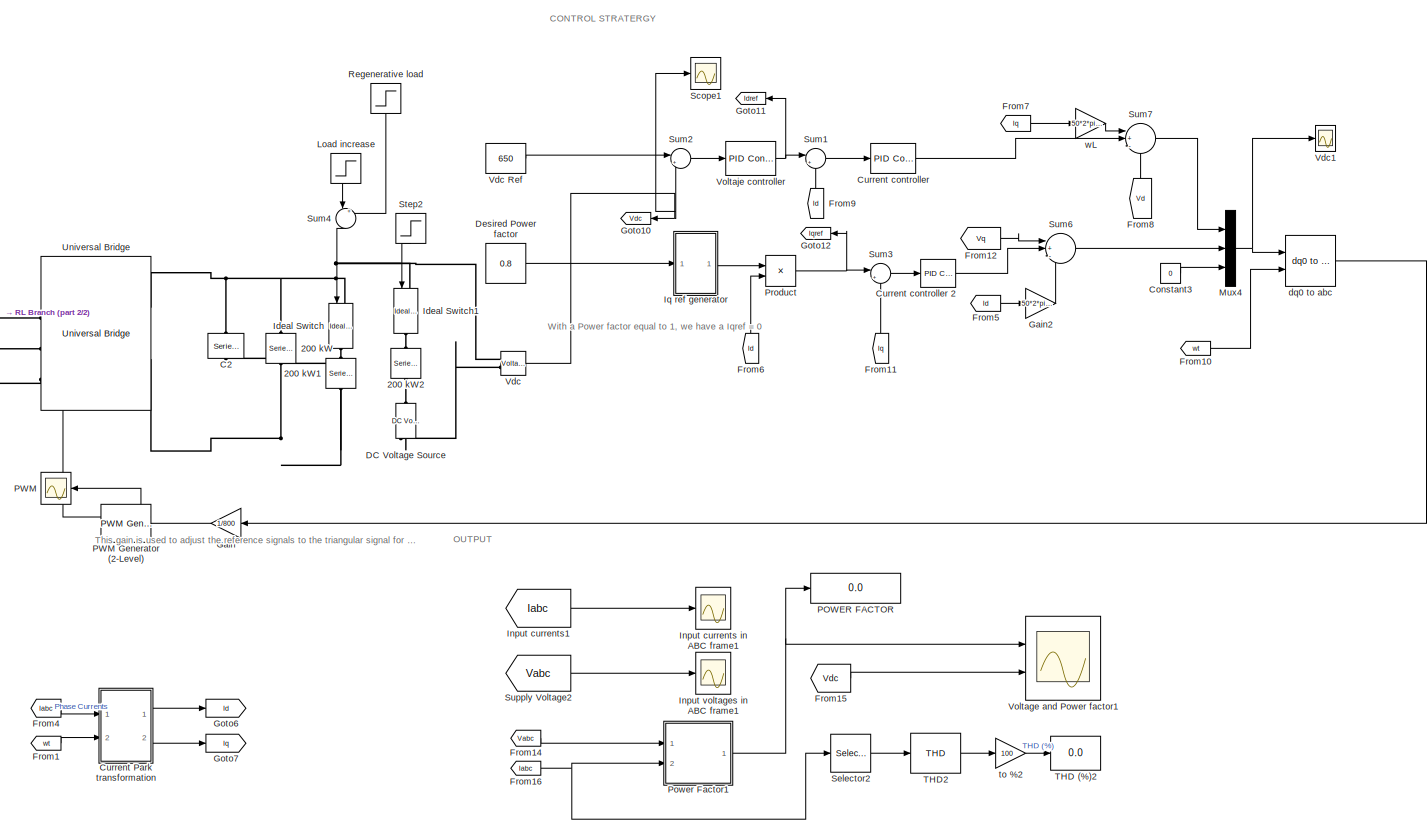
[diagram: root canvas - part 1/2, most of the canvas]
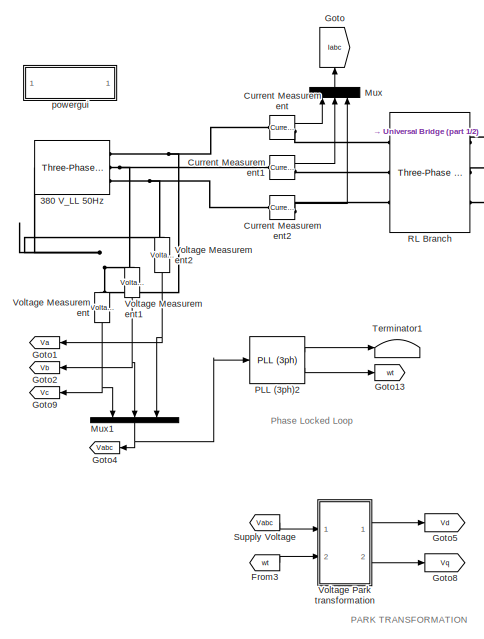
[diagram: root canvas - part 2/2, left side, full height]
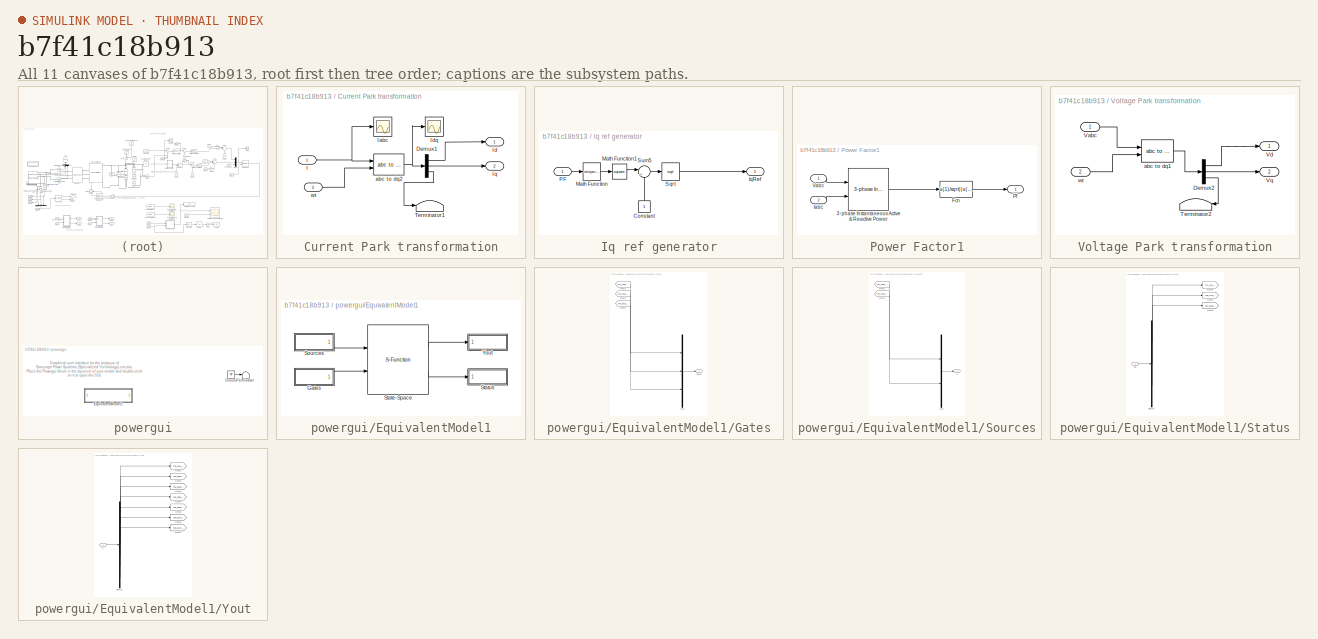
[diagram: thumbnail index - all 11 canvases of the model, root first then tree order]
MODEL slx_b7f41c18b913
KIND model
CONFIG AbsTol = auto
CONFIG EnableMultiTasking = off
CONFIG FixedStep = 3e-5
CONFIG InitFcn = load  power_3levelVSC.mat\nTs_Power=5e-6;\nTs_Control=100e-6;
CONFIG MaxStep = 1e-4
CONFIG MinStep = auto
CONFIG PreLoadFcn = load  power_3levelVSC.mat\nTs_Power=5e-6;\nTs_Control=100e-6;
CONFIG RelTol = 1e-3
CONFIG SampleTimeConstraint = Unconstrained
CONFIG Solver = VariableStepAuto
CONFIG SolverName = VariableStepAuto
CONFIG StartTime = 0.0
CONFIG StopTime = 6
BLOCK [Reference] 200 kW  REF=powerlib/Elements/Series RLC Branch
  AttributesFormatString = \n
  NameLocation = right
  Ports = [0, 0, 0, 0, 0, 1, 1]
  SourceBlock = powerlib/Elements/Series RLC Branch
  SourceProductBaseCode = PS
  SourceType = Series RLC Branch
BLOCK [Reference] 200 kW1  REF=powerlib/Elements/Series RLC Branch
  AttributesFormatString = \n
  NameLocation = right
  Ports = [0, 0, 0, 0, 0, 1, 1]
  SourceBlock = powerlib/Elements/Series RLC Branch
  SourceProductBaseCode = PS
  SourceType = Series RLC Branch
BLOCK [Reference] 200 kW2  REF=powerlib/Elements/Series RLC Branch
  AttributesFormatString = \n
  NameLocation = right
  Ports = [0, 0, 0, 0, 0, 1, 1]
  SourceBlock = powerlib/Elements/Series RLC Branch
  SourceProductBaseCode = PS
  SourceType = Series RLC Branch
BLOCK [Reference] 380 V_LL 50Hz  REF=powerlib/Electrical
Sources/Three-Phase Source
  Ports = [0, 0, 0, 0, 0, 1, 3]
  SourceBlock = powerlib/Electrical\nSources/Three-Phase Source
  SourceProductBaseCode = PS
  SourceType = Three-Phase Source
BLOCK [Reference] C2  REF=powerlib/Elements/Series RLC Branch
  AttributesFormatString = \n
  NameLocation = left
  Ports = [0, 0, 0, 0, 0, 1, 1]
  SourceBlock = powerlib/Elements/Series RLC Branch
  SourceProductBaseCode = PS
  SourceType = Series RLC Branch
BLOCK [Constant] Constant3
  SampleTime = 5e-6
  Value = 0
BLOCK [Reference] Current Measurement  REF=powerlib/Measurements/Current Measurement
  Ports = [0, 1, 0, 0, 0, 1, 1]
  SourceBlock = powerlib/Measurements/Current Measurement
  SourceProductBaseCode = PS
  SourceType = Current Measurement
  UserDataPersistent = on
BLOCK [Reference] Current Measurement1  REF=powerlib/Measurements/Current Measurement
  Ports = [0, 1, 0, 0, 0, 1, 1]
  SourceBlock = powerlib/Measurements/Current Measurement
  SourceProductBaseCode = PS
  SourceType = Current Measurement
  UserDataPersistent = on
BLOCK [Reference] Current Measurement2  REF=powerlib/Measurements/Current Measurement
  Ports = [0, 1, 0, 0, 0, 1, 1]
  SourceBlock = powerlib/Measurements/Current Measurement
  SourceProductBaseCode = PS
  SourceType = Current Measurement
  UserDataPersistent = on
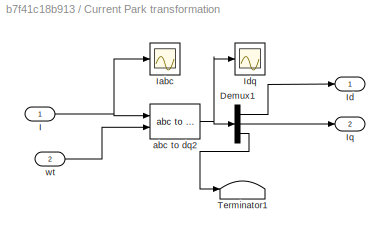
BLOCK [SubSystem] Current Park transformation
  Ports = [2, 2]
  RequestExecContextInheritance = off
BLOCK [Demux] Current Park transformation/Demux1
  Outputs = 3
  Ports = [1, 3]
BLOCK [Inport] Current Park transformation/I
BLOCK [Scope] Current Park transformation/Iabc
  Floating = off
  NumInputPorts = 1
  Ports = [1]
  ScopeSpecificationString = Simulink.scopes.TimeScopeBlockCfg('CurrentConfiguration', extmgr.ConfigurationSet(extmgr.Configuration('Core','General UI',true),extmgr.Configuration('Core','Source UI',true),extmgr.Configuration('Sources','WiredSimulink',true,'DataLoggingVariableName','ScopeData1','DataLogging',true,'DataLoggingMaxPoints','5000000','DataLoggingSaveFormat','StructureWithTime','SampleTime','1/4000'),extmgr.Configur...<+1663ch>
BLOCK [Outport] Current Park transformation/Id 
BLOCK [Scope] Current Park transformation/Idq
  Floating = off
  NumInputPorts = 1
  Ports = [1]
  ScopeSpecificationString = Simulink.scopes.TimeScopeBlockCfg('CurrentConfiguration', extmgr.ConfigurationSet(extmgr.Configuration('Core','General UI',true),extmgr.Configuration('Core','Source UI',true),extmgr.Configuration('Sources','WiredSimulink',true,'DataLoggingVariableName','ScopeData6'),extmgr.Configuration('Visuals','Time Domain',true,'SerializedDisplays',{struct('MinYLimReal','-149.71959','MaxYLimReal','162.68335','...<+1511ch>
BLOCK [Outport] Current Park transformation/Iq 
  Port = 2
BLOCK [Terminator] Current Park transformation/Terminator1
BLOCK [Reference] Current Park transformation/abc to dq2  REF=powerlib_meascontrol/Transformations/abc to dq0
  Ports = [2, 1]
  SourceBlock = powerlib_meascontrol/Transformations/abc to dq0
  SourceProductBaseCode = PS
  SourceType = abc to dq0 Transformation
BLOCK [Inport] Current Park transformation/wt
  Port = 2
BLOCK [Reference] Current controller  REF=simulink/Continuous/PID Controller
  Ports = [1, 1]
  SourceBlock = simulink/Continuous/PID Controller
  SourceProductBaseCode = SL
  SourceType = PID 1dof
BLOCK [Reference] Current controller 2  REF=simulink/Continuous/PID Controller
  Ports = [1, 1]
  SourceBlock = simulink/Continuous/PID Controller
  SourceProductBaseCode = SL
  SourceType = PID 1dof
BLOCK [Reference] DC Voltage Source  REF=powerlib/Electrical
Sources/DC Voltage Source
  NameLocation = right
  Ports = [0, 0, 0, 0, 0, 1, 1]
  SourceBlock = powerlib/Electrical\nSources/DC Voltage Source
  SourceProductBaseCode = PS
  SourceType = DC Voltage Source
BLOCK [Constant] Desired Power factor
  SampleTime = 5e-6
  Value = 0.8
BLOCK [From] From1
  GotoTag = wt
BLOCK [From] From10
  GotoTag = wt
BLOCK [From] From11
  GotoTag = Iq
  NameLocation = right
BLOCK [From] From12
  GotoTag = Vq
BLOCK [From] From14
  GotoTag = Vabc
BLOCK [From] From15
  GotoTag = Vdc
BLOCK [From] From16
  GotoTag = Iabc
BLOCK [From] From3
  GotoTag = wt
BLOCK [From] From4
  GotoTag = Iabc
BLOCK [From] From5
  GotoTag = Id
BLOCK [From] From6
  GotoTag = Id
  NameLocation = right
BLOCK [From] From7
  GotoTag = Iq
BLOCK [From] From8
  GotoTag = Vd
  NameLocation = right
BLOCK [From] From9
  GotoTag = Id
  NameLocation = right
BLOCK [Gain] Gain
  Gain = 1/800
  NameLocation = top
BLOCK [Gain] Gain2
  Gain = 50*2*pi*10e-3
  NameLocation = top
BLOCK [Goto] Goto
  GotoTag = Iabc
  NameLocation = right
BLOCK [Goto] Goto1
  GotoTag = Va
  NameLocation = top
BLOCK [Goto] Goto10
  GotoTag = Vdc
  NameLocation = top
BLOCK [Goto] Goto11
  GotoTag = Idref
  NameLocation = top
BLOCK [Goto] Goto12
  GotoTag = Iqref
  NameLocation = top
BLOCK [Goto] Goto13
  GotoTag = wt
BLOCK [Goto] Goto2
  GotoTag = Vb
  NameLocation = top
BLOCK [Goto] Goto4
  GotoTag = Vabc
  NameLocation = top
BLOCK [Goto] Goto5
  GotoTag = Vd
BLOCK [Goto] Goto6
  GotoTag = Id
BLOCK [Goto] Goto7
  GotoTag = Iq
BLOCK [Goto] Goto8
  GotoTag = Vq
BLOCK [Goto] Goto9
  GotoTag = Vc
  NameLocation = top
BLOCK [Reference] Ideal Switch  REF=powerlib/Power
Electronics/Ideal Switch
  NameLocation = left
  Ports = [1, 0, 0, 0, 0, 1, 1]
  SourceBlock = powerlib/Power\nElectronics/Ideal Switch
  SourceProductBaseCode = PS
  SourceType = Ideal Switch
BLOCK [Reference] Ideal Switch1  REF=powerlib/Power
Electronics/Ideal Switch
  NameLocation = left
  Ports = [1, 0, 0, 0, 0, 1, 1]
  SourceBlock = powerlib/Power\nElectronics/Ideal Switch
  SourceProductBaseCode = PS
  SourceType = Ideal Switch
BLOCK [Scope] Input currents in ABC frame1
  Floating = off
  NumInputPorts = 1
  Ports = [1]
  ScopeSpecificationString = Simulink.scopes.TimeScopeBlockCfg('CurrentConfiguration', extmgr.ConfigurationSet(extmgr.Configuration('Core','General UI',true),extmgr.Configuration('Core','Source UI',true),extmgr.Configuration('Sources','WiredSimulink',true,'DataLoggingVariableName','ScopeData1'),extmgr.Configuration('Visuals','Time Domain',true,'SerializedDisplays',{struct('MinYLimReal','-146.67204','MaxYLimReal','159.00454','...<+1452ch>
BLOCK [From] Input currents1
  GotoTag = Iabc
BLOCK [Scope] Input voltages in ABC frame1
  Floating = off
  NumInputPorts = 1
  Ports = [1]
  ScopeSpecificationString = Simulink.scopes.TimeScopeBlockCfg('CurrentConfiguration', extmgr.ConfigurationSet(extmgr.Configuration('Core','General UI',true),extmgr.Configuration('Core','Source UI',true),extmgr.Configuration('Sources','WiredSimulink',true,'DataLoggingVariableName','ScopeData2'),extmgr.Configuration('Visuals','Time Domain',true,'SerializedDisplays',{struct('MinYLimReal','-338.68542','MaxYLimReal','329.24172','...<+1452ch>
BLOCK [SubSystem] Iq ref generator
  Ports = [1, 1]
  RequestExecContextInheritance = off
BLOCK [Constant] Iq ref generator/Constant
  NameLocation = right
  SampleTime = 5e-6
BLOCK [Outport] Iq ref generator/IqRef
BLOCK [Math] Iq ref generator/Math Function
  Operator = reciprocal
  Ports = [1, 1]
  SignedPower = on
BLOCK [Math] Iq ref generator/Math Function1
  Operator = square
  Ports = [1, 1]
  SignedPower = on
BLOCK [Inport] Iq ref generator/PF
BLOCK [Sqrt] Iq ref generator/Sqrt
BLOCK [Sum] Iq ref generator/Sum5
  Inputs = |+-
  Ports = [2, 1]
BLOCK [Step] Load increase
  After = 5
  NameLocation = left
  SampleTime = 0
BLOCK [Mux] Mux
  DisplayOption = bar
  Inputs = 3
  NameLocation = right
  Ports = [3, 1]
BLOCK [Mux] Mux1
  DisplayOption = bar
  Inputs = 3
  NameLocation = left
  Ports = [3, 1]
BLOCK [Mux] Mux4
  Inputs = 3
  Ports = [3, 1]
BLOCK [Reference] PLL (3ph)2  REF=powerlib_meascontrol/PLL/PLL
(3ph)
  Ports = [1, 2]
  SourceBlock = powerlib_meascontrol/PLL/PLL\n(3ph)
  SourceProductBaseCode = PS
  SourceType = PLL (3ph)
BLOCK [Display] POWER FACTOR
  Decimation = 1
  Ports = [1]
BLOCK [Scope] PWM
  Floating = off
  NameLocation = top
  NumInputPorts = 1
  Ports = [1]
  ScopeSpecificationString = Simulink.scopes.TimeScopeBlockCfg('CurrentConfiguration', extmgr.ConfigurationSet(extmgr.Configuration('Core','General UI',true),extmgr.Configuration('Core','Source UI',true),extmgr.Configuration('Sources','WiredSimulink',true,'DataLoggingVariableName','ScopeData5'),extmgr.Configuration('Visuals','Time Domain',true,'SerializedDisplays',{struct('MinYLimReal','-1.879','MaxYLimReal','1.77732','YLabel...<+1514ch>
BLOCK [Reference] PWM Generator (2-Level)  REF=powerlib_meascontrol/Pulse & Signal
Generators/PWM Generator
(2-Level)
  NameLocation = top
  Ports = [1, 2]
  SourceBlock = powerlib_meascontrol/Pulse & Signal\nGenerators/PWM Generator\n(2-Level)
  SourceProductBaseCode = PS
  SourceType = PWM Generator (2-Level)
BLOCK [SubSystem] Power Factor1
  Ports = [2, 1]
  RequestExecContextInheritance = off
BLOCK [Reference] Power Factor1/3-phase Instantaneous Active & Reactive Power  REF=powerlib_extras/Measurements/3-phase 
Instantaneous 
Active & Reactive Power
  Ports = [2, 1]
  SourceBlock = powerlib_extras/Measurements/3-phase \nInstantaneous \nActive & Reactive Power
  SourceProductBaseCode = PS
  SourceType = 3-phase instantaneous active and reactive power
BLOCK [Fcn] Power Factor1/Fcn
  Expr = u(1)/sqrt((u(1))^2+(u(2))^2)
BLOCK [Inport] Power Factor1/Iabc
  Port = 2
BLOCK [Outport] Power Factor1/Pf
BLOCK [Inport] Power Factor1/Vabc
BLOCK [Product] Product
  Ports = [2, 1]
BLOCK [Reference] RL Branch  REF=powerlib/Elements/Three-Phase
Series RLC Branch
  AttributesFormatString = \n
  Ports = [0, 0, 0, 0, 0, 3, 3]
  SourceBlock = powerlib/Elements/Three-Phase\nSeries RLC Branch
  SourceProductBaseCode = PS
  SourceType = Three-Phase Series RLC Branch
BLOCK [Step] Regenerative load
  After = 5
  NameLocation = left
  SampleTime = 0
  Time = 2
BLOCK [Scope] Scope1
  Floating = off
  NumInputPorts = 1
  Ports = [1]
  ScopeSpecificationString = Simulink.scopes.TimeScopeBlockCfg('CurrentConfiguration', extmgr.ConfigurationSet(extmgr.Configuration('Core','General UI',true),extmgr.Configuration('Core','Source UI',true),extmgr.Configuration('Sources','WiredSimulink',true,'DataLoggingVariableName','ScopeData2'),extmgr.Configuration('Visuals','Time Domain',true,'SerializedDisplays',{struct('MinYLimReal','-84.79647','MaxYLimReal','763.16786','Y...<+1400ch>
BLOCK [Selector] Selector2
  IndexOptions = Index vector (dialog)
  Indices = [1]
  InputPortWidth = 3
  OutputSizes = 1
  Ports = [1, 1]
BLOCK [Step] Step2
  After = 5
  NameLocation = left
  SampleTime = 0
  Time = 3
BLOCK [Sum] Sum1
  Inputs = |+-
  Ports = [2, 1]
BLOCK [Sum] Sum2
  Inputs = |+-
  Ports = [2, 1]
BLOCK [Sum] Sum3
  Inputs = |+-
  Ports = [2, 1]
BLOCK [Sum] Sum4
  Inputs = |+-
  NameLocation = left
  Ports = [2, 1]
BLOCK [Sum] Sum6
  Inputs = |+--
  Ports = [3, 1]
BLOCK [Sum] Sum7
  Inputs = |+-+
  Ports = [3, 1]
BLOCK [From] Supply Voltage
  GotoTag = Vabc
BLOCK [From] Supply Voltage2
  GotoTag = Vabc
BLOCK [Display] THD (%)2
  Decimation = 1
  Format = bank
  Ports = [1]
BLOCK [Reference] THD2  REF=powerlib_meascontrol/Measurements/THD
  Ports = [1, 1]
  SourceBlock = powerlib_meascontrol/Measurements/THD
  SourceProductBaseCode = PS
  SourceType = THD
BLOCK [Terminator] Terminator1
BLOCK [Reference] Universal Bridge  REF=powerlib/Power
Electronics/Universal Bridge
  Ports = [1, 0, 0, 0, 0, 3, 2]
  SourceBlock = powerlib/Power\nElectronics/Universal Bridge
  SourceProductBaseCode = PS
  SourceType = Universal Bridge
BLOCK [Reference] Vdc   REF=powerlib/Measurements/Voltage Measurement
  AttributesFormatString = \n
  NameLocation = top
  Ports = [0, 1, 0, 0, 0, 2]
  SourceBlock = powerlib/Measurements/Voltage Measurement
  SourceProductBaseCode = PS
  SourceType = Voltage Measurement
  Tag = PoWeRsYsTeMmEaSuReMeNt
BLOCK [Constant] Vdc Ref
  SampleTime = 5e-6
  Value = 650
BLOCK [Scope] Vdc1
  Floating = off
  NumInputPorts = 1
  Ports = [1]
  ScopeSpecificationString = Simulink.scopes.TimeScopeBlockCfg('CurrentConfiguration', extmgr.ConfigurationSet(extmgr.Configuration('Core','General UI',true),extmgr.Configuration('Core','Source UI',true),extmgr.Configuration('Sources','WiredSimulink',true,'DataLoggingVariableName','ScopeData1'),extmgr.Configuration('Visuals','Time Domain',true,'SerializedDisplays',{struct('MinYLimReal','-100.57594','MaxYLimReal','905.18326','...<+1423ch>
BLOCK [Reference] Voltage Measurement  REF=powerlib/Measurements/Voltage Measurement
  NameLocation = left
  Ports = [0, 1, 0, 0, 0, 2]
  SourceBlock = powerlib/Measurements/Voltage Measurement
  SourceProductBaseCode = PS
  SourceType = Voltage Measurement
  UserDataPersistent = on
BLOCK [Reference] Voltage Measurement1  REF=powerlib/Measurements/Voltage Measurement
  NameLocation = left
  Ports = [0, 1, 0, 0, 0, 2]
  SourceBlock = powerlib/Measurements/Voltage Measurement
  SourceProductBaseCode = PS
  SourceType = Voltage Measurement
  UserDataPersistent = on
BLOCK [Reference] Voltage Measurement2  REF=powerlib/Measurements/Voltage Measurement
  NameLocation = left
  Ports = [0, 1, 0, 0, 0, 2]
  SourceBlock = powerlib/Measurements/Voltage Measurement
  SourceProductBaseCode = PS
  SourceType = Voltage Measurement
  UserDataPersistent = on
BLOCK [SubSystem] Voltage Park transformation
  Ports = [2, 2]
  RequestExecContextInheritance = off
BLOCK [Demux] Voltage Park transformation/Demux2
  Outputs = 3
  Ports = [1, 3]
BLOCK [Terminator] Voltage Park transformation/Terminator2
  NameLocation = top
BLOCK [Inport] Voltage Park transformation/Vabc
BLOCK [Outport] Voltage Park transformation/Vd
BLOCK [Outport] Voltage Park transformation/Vq
  Port = 2
BLOCK [Reference] Voltage Park transformation/abc to dq1  REF=powerlib_meascontrol/Transformations/abc to dq0
  Ports = [2, 1]
  SourceBlock = powerlib_meascontrol/Transformations/abc to dq0
  SourceProductBaseCode = PS
  SourceType = abc to dq0 Transformation
BLOCK [Inport] Voltage Park transformation/wt
  Port = 2
BLOCK [Scope] Voltage and Power factor1
  Floating = off
  NumInputPorts = 2
  Ports = [2]
  ScopeSpecificationString = Simulink.scopes.TimeScopeBlockCfg('CurrentConfiguration', extmgr.ConfigurationSet(extmgr.Configuration('Core','General UI',true),extmgr.Configuration('Core','Source UI',true),extmgr.Configuration('Sources','WiredSimulink',true,'DataLoggingVariableName','ScopeData4'),extmgr.Configuration('Visuals','Time Domain',true,'SerializedDisplays',{struct('MinYLimReal','-1.25','MaxYLimReal','1.25','YLabelReal...<+2059ch>
BLOCK [Reference] Voltaje controller  REF=simulink/Continuous/PID Controller
  Ports = [1, 1]
  SourceBlock = simulink/Continuous/PID Controller
  SourceProductBaseCode = SL
  SourceType = PID 1dof
BLOCK [Reference] dq0 to abc  REF=powerlib_meascontrol/Transformations/dq0 to abc
  Ports = [2, 1]
  SourceBlock = powerlib_meascontrol/Transformations/dq0 to abc
  SourceProductBaseCode = PS
  SourceType = dq0 to abc Transformation
BLOCK [SubSystem] powergui
  AncestorBlock = powerlib/powergui
  DialogController = POWERSYS.PowerSysDialog
  InitFcn = powergui( 'InitFcn_Callback' , gcb , 0 , [ ] );
  OpenFcn = sps_rtmsupport('OpenFcn',gcbh)
  Ports = []
  PreSaveFcn = powergui( 'PreSaveFcn_Callback' , gcb , [ ] , [ ] );
  Priority = 2
  RequestExecContextInheritance = off
BLOCK [SubSystem] powergui/EquivalentModel1
  Ports = []
  RequestExecContextInheritance = off
BLOCK [SubSystem] powergui/EquivalentModel1/Gates
  Ports = [0, 1]
  RequestExecContextInheritance = off
BLOCK [From] powergui/EquivalentModel1/Gates/From1
  GotoTag = T45_4486_3107308976636
  TagVisibility = global
BLOCK [From] powergui/EquivalentModel1/Gates/From2
  GotoTag = T46_4535_3113683283000
  TagVisibility = global
BLOCK [From] powergui/EquivalentModel1/Gates/From3
  GotoTag = T49_4923_3663837512406
  TagVisibility = global
BLOCK [Mux] powergui/EquivalentModel1/Gates/Mux
  DisplayOption = bar
  Inputs = [1 1 6]
  Ports = [3, 1]
BLOCK [Outport] powergui/EquivalentModel1/Gates/gates
  VectorParamsAs1DForOutWhenUnconnected = off
BLOCK [SubSystem] powergui/EquivalentModel1/Sources
  Ports = [0, 1]
  RequestExecContextInheritance = off
BLOCK [From] powergui/EquivalentModel1/Sources/From1
  GotoTag = T50_4895_3918490163367
  TagVisibility = global
BLOCK [From] powergui/EquivalentModel1/Sources/From2
  GotoTag = T46_4196_2648416749357
  TagVisibility = global
BLOCK [Mux] powergui/EquivalentModel1/Sources/Mux
  DisplayOption = bar
  Inputs = [1 3]
  Ports = [2, 1]
BLOCK [Outport] powergui/EquivalentModel1/Sources/u
  VectorParamsAs1DForOutWhenUnconnected = off
BLOCK [S-Function] powergui/EquivalentModel1/State-Space
  EnableBusSupport = off
  FunctionName = sfun_spid_contc
  Parameters = S.Mg, [S.nb.x S.nb.u S.nb.y S.nb.s], S.x0, S.MgColNames, S.SwitchVf, S.SwitchType, S.SwitchGateInitialValue, S.SwitchTolerance,S.SaveMatrices,S.BufferSize
  Ports = [2, 2]
  SFcnIsStateOwnerBlock = off
  SFunctionDeploymentMode = off
BLOCK [SubSystem] powergui/EquivalentModel1/Status
  Ports = [1]
  RequestExecContextInheritance = off
BLOCK [Demux] powergui/EquivalentModel1/Status/Demux
  Outputs = [2 2 12]
  Ports = [1, 3]
BLOCK [Goto] powergui/EquivalentModel1/Status/Goto1
  GotoTag = T47_4721_3646797611610
  TagVisibility = global
BLOCK [Goto] powergui/EquivalentModel1/Status/Goto2
  GotoTag = T48_4770_3690447409770
  TagVisibility = global
BLOCK [Goto] powergui/EquivalentModel1/Status/Goto3
  GotoTag = T51_5158_4241734732541
  TagVisibility = global
BLOCK [Inport] powergui/EquivalentModel1/Status/v&i
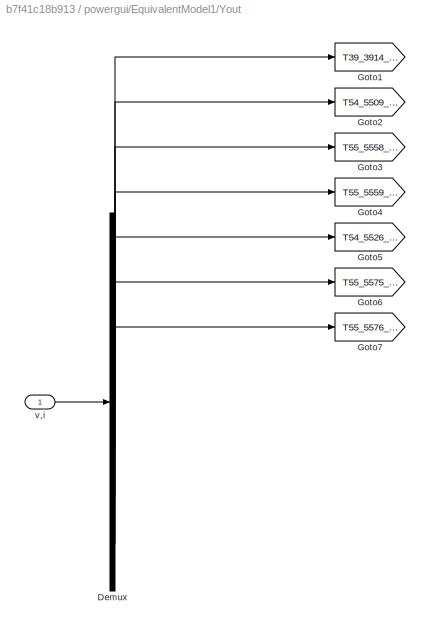
BLOCK [SubSystem] powergui/EquivalentModel1/Yout
  Ports = [1]
  RequestExecContextInheritance = off
BLOCK [Demux] powergui/EquivalentModel1/Yout/Demux
  Outputs = [1 1 1 1 1 1 1]
  Ports = [1, 7]
BLOCK [Goto] powergui/EquivalentModel1/Yout/Goto1
  GotoTag = T39_3914_2366650775115
  TagVisibility = global
BLOCK [Goto] powergui/EquivalentModel1/Yout/Goto2
  GotoTag = T54_5509_4975933605059
  TagVisibility = global
BLOCK [Goto] powergui/EquivalentModel1/Yout/Goto3
  GotoTag = T55_5558_5007565646148
  TagVisibility = global
BLOCK [Goto] powergui/EquivalentModel1/Yout/Goto4
  GotoTag = T55_5559_5006356134694
  TagVisibility = global
BLOCK [Goto] powergui/EquivalentModel1/Yout/Goto5
  GotoTag = T54_5526_5056682076006
  TagVisibility = global
BLOCK [Goto] powergui/EquivalentModel1/Yout/Goto6
  GotoTag = T55_5575_5086617684579
  TagVisibility = global
BLOCK [Goto] powergui/EquivalentModel1/Yout/Goto7
  GotoTag = T55_5576_5085373267488
  TagVisibility = global
BLOCK [Inport] powergui/EquivalentModel1/Yout/v,i
BLOCK [Ground] powergui/Ground
BLOCK [Terminator] powergui/Terminator
BLOCK [Gain] to %2
  Gain = 100
BLOCK [Gain] wL
  Gain = 50*2*pi*10e-3
  NameLocation = top
ANNOTATION (root): CONTROL STRATERGY
ANNOTATION (root): OUTPUT
ANNOTATION (root): PARK TRANSFORMATION
ANNOTATION (root): Phase Locked Loop
ANNOTATION (root): This gain is used to adjust the reference signals to the triangular signal for the generation of the PWM gate signals
ANNOTATION (root): With a Power factor equal to 1, we have a Iqref = 0
ANNOTATION powergui: Graphical user interface for the analysis of Simscape Power Systems (Specialized Technology) circuits. Place the Powergui block in the top-level of your model and double-click on it to open the GUI.
LINE Constant3:1 -> Mux4:3
LINE Current Measurement1:1 -> Mux:2
LINE Current Measurement2:1 -> Mux:3
LINE Current Measurement:1 -> Mux:1
LINE Current Park transformation/Demux1:1 -> Current Park transformation/Id :1
LINE Current Park transformation/Demux1:2 -> Current Park transformation/Iq :1
LINE Current Park transformation/Demux1:3 -> Current Park transformation/Terminator1:1
NET Current Park transformation/I:1 -> Current Park transformation/Iabc:1, Current Park transformation/abc to dq2:1
NET Current Park transformation/abc to dq2:1 -> Current Park transformation/Demux1:1, Current Park transformation/Idq:1
LINE Current Park transformation/wt:1 -> Current Park transformation/abc to dq2:2
LINE Current Park transformation:1 -> Goto6:1
LINE Current Park transformation:2 -> Goto7:1
LINE Current controller 2:1 -> Sum6:2
LINE Current controller:1 -> Sum7:2
LINE Desired Power factor:1 -> Iq ref generator:1
LINE From10:1 -> dq0 to abc:2
LINE From11:1 -> Sum3:2
LINE From12:1 -> Sum6:1
LINE From14:1 -> Power Factor1:1
LINE From15:1 -> Voltage and Power factor1:2
NET From16:1 -> Power Factor1:2, Selector2:1
LINE From1:1 -> Current Park transformation:2
LINE From3:1 -> Voltage Park transformation:2
LINE From4:1 -> Current Park transformation:1
LINE From5:1 -> Gain2:1
LINE From6:1 -> Product:2
LINE From7:1 -> wL:1
LINE From8:1 -> Sum7:3
LINE From9:1 -> Sum1:2
LINE Gain2:1 -> Sum6:3
LINE Gain:1 -> PWM Generator (2-Level):1
LINE Input currents1:1 -> Input currents in ABC frame1:1
LINE Iq ref generator/Constant:1 -> Iq ref generator/Sum5:2
LINE Iq ref generator/Math Function1:1 -> Iq ref generator/Sum5:1
LINE Iq ref generator/Math Function:1 -> Iq ref generator/Math Function1:1
LINE Iq ref generator/PF:1 -> Iq ref generator/Math Function:1
LINE Iq ref generator/Sqrt:1 -> Iq ref generator/IqRef:1
LINE Iq ref generator/Sum5:1 -> Iq ref generator/Sqrt:1
LINE Iq ref generator:1 -> Product:1
LINE Load increase:1 -> Sum4:1
NET Mux1:1 -> Goto4:1, PLL (3ph)2:1
NET Mux4:1 -> Vdc1:1, dq0 to abc:1
LINE Mux:1 -> Goto:1
LINE PLL (3ph)2:1 -> Terminator1:1
LINE PLL (3ph)2:2 -> Goto13:1
LINE PWM Generator (2-Level):1 -> Universal Bridge:1
LINE PWM Generator (2-Level):2 -> PWM:1
LINE Power Factor1/3-phase Instantaneous Active & Reactive Power:1 -> Power Factor1/Fcn:1
LINE Power Factor1/Fcn:1 -> Power Factor1/Pf:1
LINE Power Factor1/Iabc:1 -> Power Factor1/3-phase Instantaneous Active & Reactive Power:2
LINE Power Factor1/Vabc:1 -> Power Factor1/3-phase Instantaneous Active & Reactive Power:1
NET Power Factor1:1 -> POWER FACTOR:1, Voltage and Power factor1:1
NET Product:1 -> Goto12:1, Sum3:1
LINE Regenerative load:1 -> Sum4:2
LINE Selector2:1 -> THD2:1
LINE Step2:1 -> Ideal Switch1:1
LINE Sum1:1 -> Current controller:1
LINE Sum2:1 -> Voltaje controller:1
LINE Sum3:1 -> Current controller 2:1
LINE Sum4:1 -> Ideal Switch:1
LINE Sum6:1 -> Mux4:2
LINE Sum7:1 -> Mux4:1
LINE Supply Voltage2:1 -> Input voltages in ABC frame1:1
LINE Supply Voltage:1 -> Voltage Park transformation:1
LINE THD2:1 -> to %2:1
NET Vdc :1 -> Goto10:1, Scope1:1, Sum2:2
LINE Vdc Ref:1 -> Sum2:1
NET Voltage Measurement1:1 -> Goto2:1, Mux1:2
NET Voltage Measurement2:1 -> Goto1:1, Mux1:3
NET Voltage Measurement:1 -> Goto9:1, Mux1:1
LINE Voltage Park transformation/Demux2:1 -> Voltage Park transformation/Vd:1
LINE Voltage Park transformation/Demux2:2 -> Voltage Park transformation/Vq:1
LINE Voltage Park transformation/Demux2:3 -> Voltage Park transformation/Terminator2:1
LINE Voltage Park transformation/Vabc:1 -> Voltage Park transformation/abc to dq1:1
LINE Voltage Park transformation/abc to dq1:1 -> Voltage Park transformation/Demux2:1
LINE Voltage Park transformation/wt:1 -> Voltage Park transformation/abc to dq1:2
LINE Voltage Park transformation:1 -> Goto5:1
LINE Voltage Park transformation:2 -> Goto8:1
NET Voltaje controller:1 -> Goto11:1, Sum1:1
LINE dq0 to abc:1 -> Gain:1
LINE to %2:1 -> THD (%)2:1
LINE wL:1 -> Sum7:1
PLINE 200 kW1:LConn1 -- Ideal Switch:RConn1
PNET net1: 200 kW1:RConn1 -- 200 kW:RConn1 -- C2:RConn1 -- DC Voltage Source:LConn1 -- Universal Bridge:RConn2 -- Vdc :LConn2
PLINE 200 kW2:LConn1 -- Ideal Switch1:RConn1
PLINE 200 kW2:RConn1 -- DC Voltage Source:RConn1
PNET net2: 200 kW:LConn1 -- C2:LConn1 -- Ideal Switch1:LConn1 -- Ideal Switch:LConn1 -- Universal Bridge:RConn1 -- Vdc :LConn1
PNET net3: 380 V_LL 50Hz:LConn1 -- Voltage Measurement1:LConn2 -- Voltage Measurement2:LConn2 -- Voltage Measurement:LConn2
PNET net4: 380 V_LL 50Hz:RConn1 -- Current Measurement:LConn1 -- Voltage Measurement:LConn1
PNET net5: 380 V_LL 50Hz:RConn2 -- Current Measurement1:LConn1 -- Voltage Measurement1:LConn1
PNET net6: 380 V_LL 50Hz:RConn3 -- Current Measurement2:LConn1 -- Voltage Measurement2:LConn1
PLINE Current Measurement1:RConn1 -- RL Branch:LConn2
PLINE Current Measurement2:RConn1 -- RL Branch:LConn3
PLINE Current Measurement:RConn1 -- RL Branch:LConn1
PLINE RL Branch:RConn1 -- Universal Bridge:LConn1
PLINE RL Branch:RConn2 -- Universal Bridge:LConn2
PLINE RL Branch:RConn3 -- Universal Bridge:LConn3
note: NET lines group one-source signal fan-out (src -> all destinations, sorted); 1:1 wires keep LINE; PNET lines group multi-terminal physical nets as a canonical sorted terminal list (undirected conserving connections); 2-terminal nets keep the pairwise PLINE form
